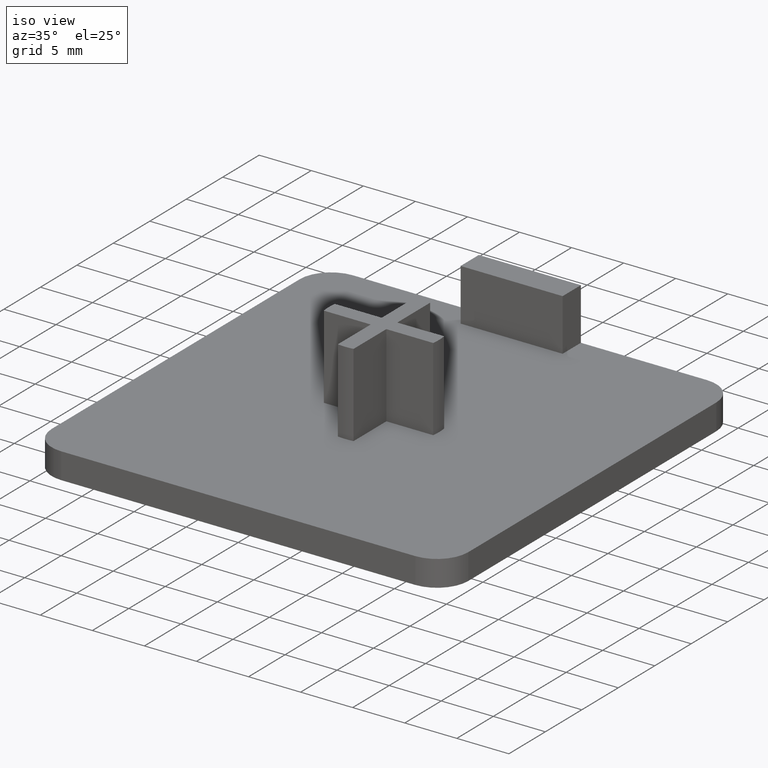
[diagram: clean part render]
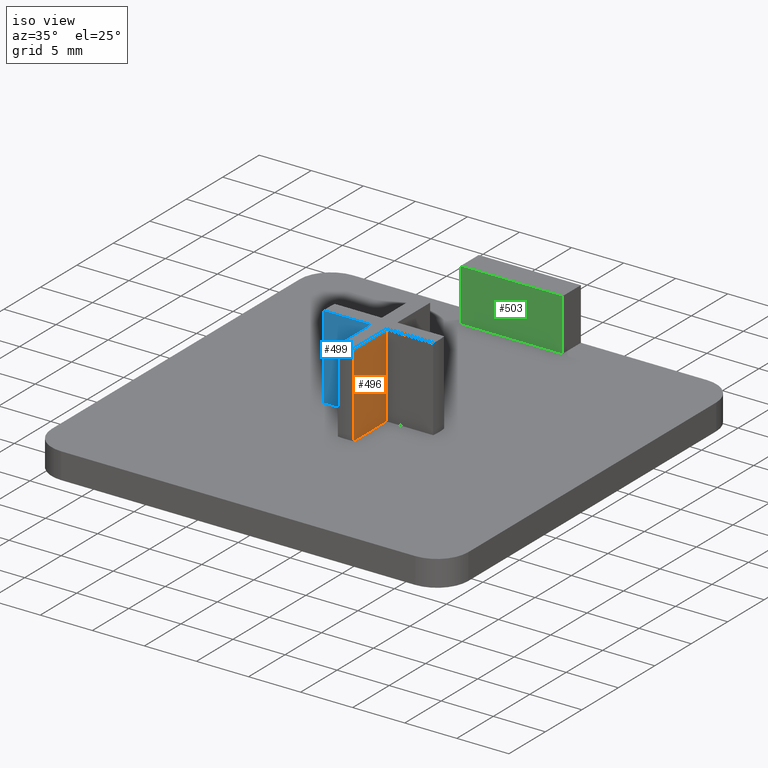
[diagram: same view with three faces highlighted in distinct colors, each labeled with its STEP entity id]
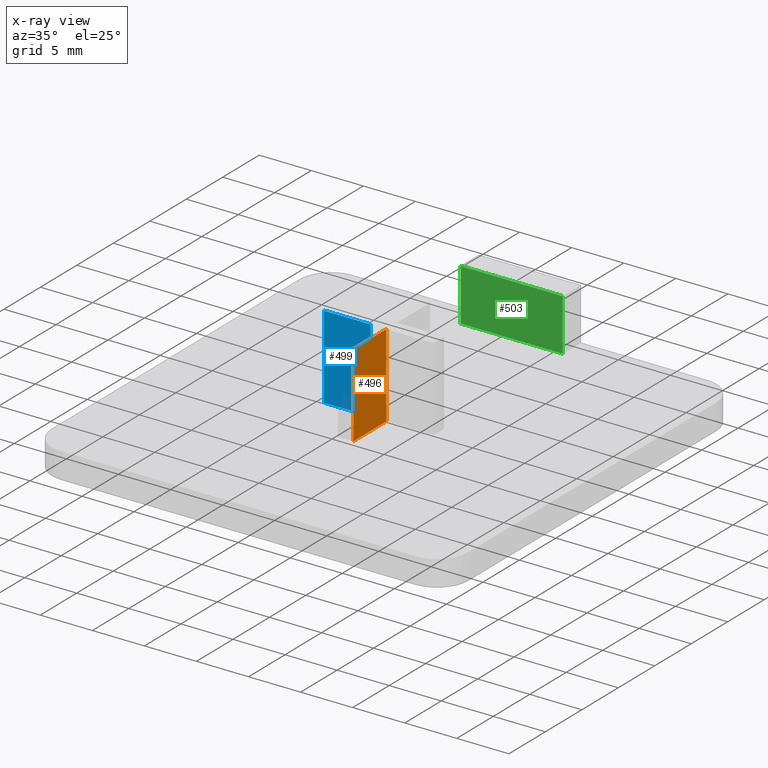
[diagram: x-ray of the same camera — body ghosted, the three highlighted faces saturated]
A machine part, iso view with three faces highlighted in distinct colors.
The next image is the same camera in x-ray (body ghosted, the three faces saturated) — at least one of them is partly hidden behind the body in this view.
Their STEP definitions:

[orange] entity #496 — the highlighted planar face has unit normal (1, 0, 0).
#46=FACE_OUTER_BOUND('',#73,.T.);
#73=EDGE_LOOP('',(#351,#352,#353,#354));
#98=LINE('',#715,#154);
#110=LINE('',#748,#166);
#111=LINE('',#750,#167);
#112=LINE('',#751,#168);
#154=VECTOR('',#569,8.);
#166=VECTOR('',#601,4.49666560779318);
#167=VECTOR('',#602,4.49666560779318);
#168=VECTOR('',#603,8.);
#208=VERTEX_POINT('',#709);
#210=VERTEX_POINT('',#713);
#221=VERTEX_POINT('',#747);
#222=VERTEX_POINT('',#749);
#258=EDGE_CURVE('',#208,#210,#98,.T.);
#274=EDGE_CURVE('',#208,#221,#110,.T.);
#275=EDGE_CURVE('',#222,#210,#111,.T.);
#276=EDGE_CURVE('',#221,#222,#112,.T.);
#351=ORIENTED_EDGE('',*,*,#274,.F.);
#352=ORIENTED_EDGE('',*,*,#258,.T.);
#353=ORIENTED_EDGE('',*,*,#275,.F.);
#354=ORIENTED_EDGE('',*,*,#276,.F.);
#475=PLANE('',#529);
#496=ADVANCED_FACE('',(#46),#475,.T.);
#529=AXIS2_PLACEMENT_3D('',#746,#599,#600);
#569=DIRECTION('',(0.,0.,1.));
#599=DIRECTION('center_axis',(1.,0.,0.));
#600=DIRECTION('ref_axis',(0.,1.,0.));
#601=DIRECTION('',(0.,-1.,0.));
#602=DIRECTION('',(0.,1.,0.));
#603=DIRECTION('',(0.,0.,1.));
#709=CARTESIAN_POINT('',(0.750000000000002,-0.749999999999997,2.5));
#713=CARTESIAN_POINT('',(0.750000000000002,-0.749999999999997,10.5));
#715=CARTESIAN_POINT('',(0.750000000000002,-0.749999999999997,0.));
#746=CARTESIAN_POINT('Origin',(0.750000000000002,-5.24666560779318,0.));
#747=CARTESIAN_POINT('',(0.750000000000002,-5.24666560779318,2.5));
#748=CARTESIAN_POINT('',(0.750000000000002,6.75166719610342,2.5));
#749=CARTESIAN_POINT('',(0.750000000000002,-5.24666560779318,10.5));
#750=CARTESIAN_POINT('',(0.750000000000002,-5.24666560779318,10.5));
#751=CARTESIAN_POINT('',(0.750000000000002,-5.24666560779318,0.));

[blue] entity #499 — the highlighted planar face has unit normal (0, -1, 0).
#49=FACE_OUTER_BOUND('',#76,.T.);
#76=EDGE_LOOP('',(#363,#364,#365,#366));
#116=LINE('',#763,#172);
#117=LINE('',#766,#173);
#118=LINE('',#768,#174);
#119=LINE('',#769,#175);
#172=VECTOR('',#615,8.);
#173=VECTOR('',#618,4.49666560779321);
#174=VECTOR('',#619,4.49666560779321);
#175=VECTOR('',#620,8.);
#225=VERTEX_POINT('',#759);
#226=VERTEX_POINT('',#761);
#227=VERTEX_POINT('',#765);
#228=VERTEX_POINT('',#767);
#282=EDGE_CURVE('',#225,#226,#116,.T.);
#283=EDGE_CURVE('',#225,#227,#117,.T.);
#284=EDGE_CURVE('',#228,#226,#118,.T.);
#285=EDGE_CURVE('',#227,#228,#119,.T.);
#363=ORIENTED_EDGE('',*,*,#283,.F.);
#364=ORIENTED_EDGE('',*,*,#282,.T.);
#365=ORIENTED_EDGE('',*,*,#284,.F.);
#366=ORIENTED_EDGE('',*,*,#285,.F.);
#477=PLANE('',#534);
#499=ADVANCED_FACE('',(#49),#477,.T.);
#534=AXIS2_PLACEMENT_3D('',#764,#616,#617);
#615=DIRECTION('',(0.,0.,1.));
#616=DIRECTION('center_axis',(0.,-1.,0.));
#617=DIRECTION('ref_axis',(1.,0.,0.));
#618=DIRECTION('',(-1.,0.,0.));
#619=DIRECTION('',(1.,0.,0.));
#620=DIRECTION('',(0.,0.,1.));
#759=CARTESIAN_POINT('',(-0.749999999999997,-0.749999999999997,2.5));
#761=CARTESIAN_POINT('',(-0.749999999999997,-0.749999999999997,10.5));
#763=CARTESIAN_POINT('',(-0.749999999999997,-0.749999999999997,0.));
#764=CARTESIAN_POINT('Origin',(-5.24666560779321,-0.749999999999997,0.));
#765=CARTESIAN_POINT('',(-5.24666560779321,-0.749999999999997,2.5));
#766=CARTESIAN_POINT('',(-2.62333280389661,-0.749999999999997,2.5));
#767=CARTESIAN_POINT('',(-5.24666560779321,-0.749999999999997,10.5));
#768=CARTESIAN_POINT('',(-5.24666560779321,-0.749999999999997,10.5));
#769=CARTESIAN_POINT('',(-5.24666560779321,-0.749999999999997,0.));

[green] entity #503 — the highlighted planar face has unit normal (0, -1, 0).
#53=FACE_OUTER_BOUND('',#80,.T.);
#80=EDGE_LOOP('',(#387,#388,#389,#390));
#123=LINE('',#783,#179);
#124=LINE('',#785,#180);
#125=LINE('',#787,#181);
#126=LINE('',#788,#182);
#179=VECTOR('',#636,9.8);
#180=VECTOR('',#637,5.);
#181=VECTOR('',#638,9.8);
#182=VECTOR('',#639,5.);
#231=VERTEX_POINT('',#781);
#232=VERTEX_POINT('',#782);
#233=VERTEX_POINT('',#784);
#234=VERTEX_POINT('',#786);
#291=EDGE_CURVE('',#231,#232,#123,.T.);
#292=EDGE_CURVE('',#231,#233,#124,.T.);
#293=EDGE_CURVE('',#234,#233,#125,.T.);
#294=EDGE_CURVE('',#232,#234,#126,.T.);
#387=ORIENTED_EDGE('',*,*,#291,.F.);
#388=ORIENTED_EDGE('',*,*,#292,.T.);
#389=ORIENTED_EDGE('',*,*,#293,.F.);
#390=ORIENTED_EDGE('',*,*,#294,.F.);
#480=PLANE('',#540);
#503=ADVANCED_FACE('',(#53),#480,.T.);
#540=AXIS2_PLACEMENT_3D('',#780,#634,#635);
#634=DIRECTION('center_axis',(0.,-1.,0.));
#635=DIRECTION('ref_axis',(1.,0.,0.));
#636=DIRECTION('',(-1.,0.,0.));
#637=DIRECTION('',(0.,0.,1.));
#638=DIRECTION('',(1.,0.,0.));
#639=DIRECTION('',(0.,0.,1.));
#780=CARTESIAN_POINT('Origin',(-4.9,17.5,0.));
#781=CARTESIAN_POINT('',(4.89999999999999,17.5,2.5));
#782=CARTESIAN_POINT('',(-4.9,17.5,2.5));
#783=CARTESIAN_POINT('',(-2.45000000000001,17.5,2.5));
#784=CARTESIAN_POINT('',(4.89999999999999,17.5,7.5));
#785=CARTESIAN_POINT('',(4.89999999999999,17.5,0.));
#786=CARTESIAN_POINT('',(-4.9,17.5,7.5));
#787=CARTESIAN_POINT('',(-4.9,17.5,7.5));
#788=CARTESIAN_POINT('',(-4.9,17.5,0.));